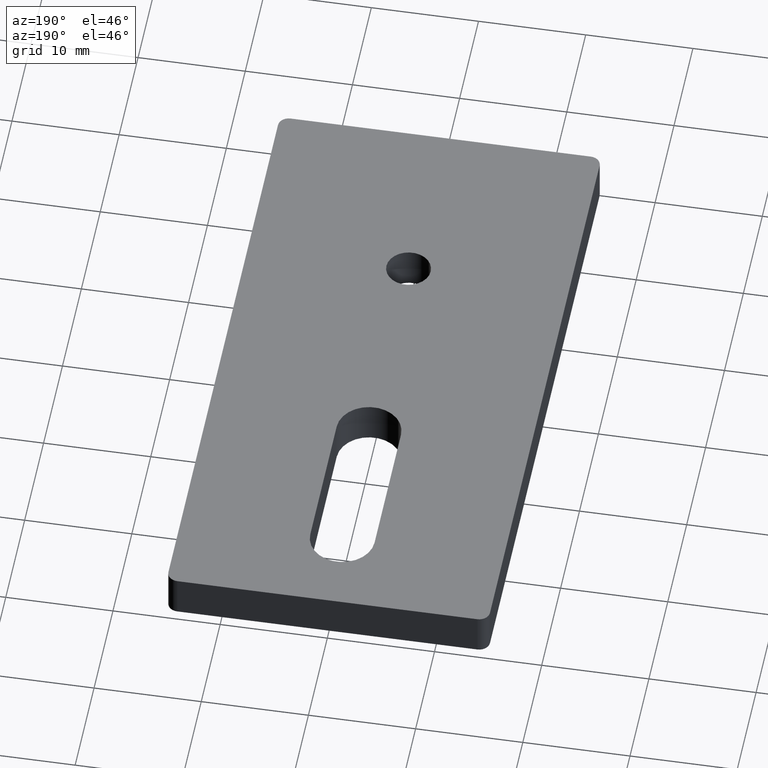
[diagram: clean part render]
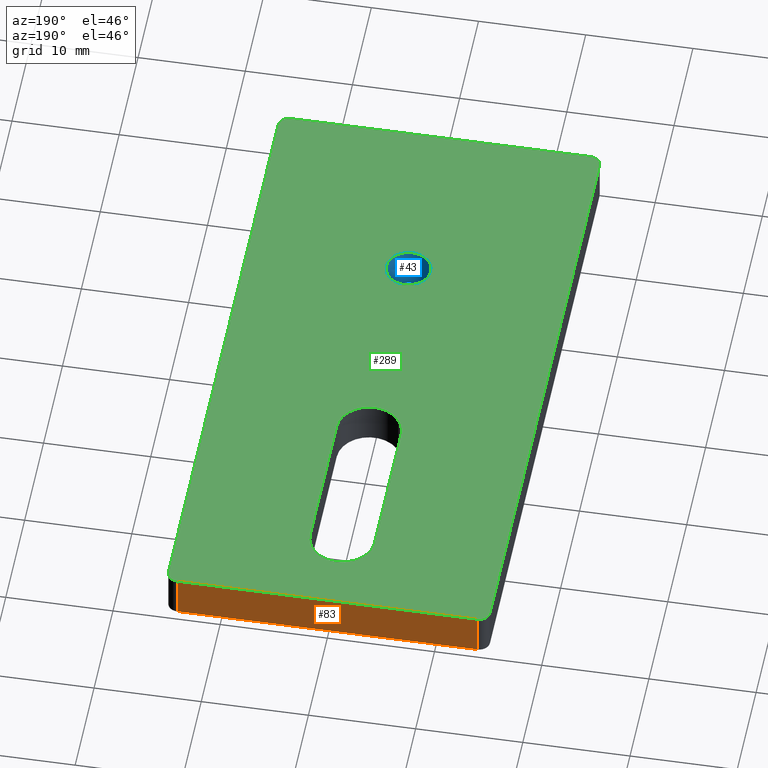
[diagram: same view with three faces highlighted in distinct colors, each labeled with its STEP entity id]
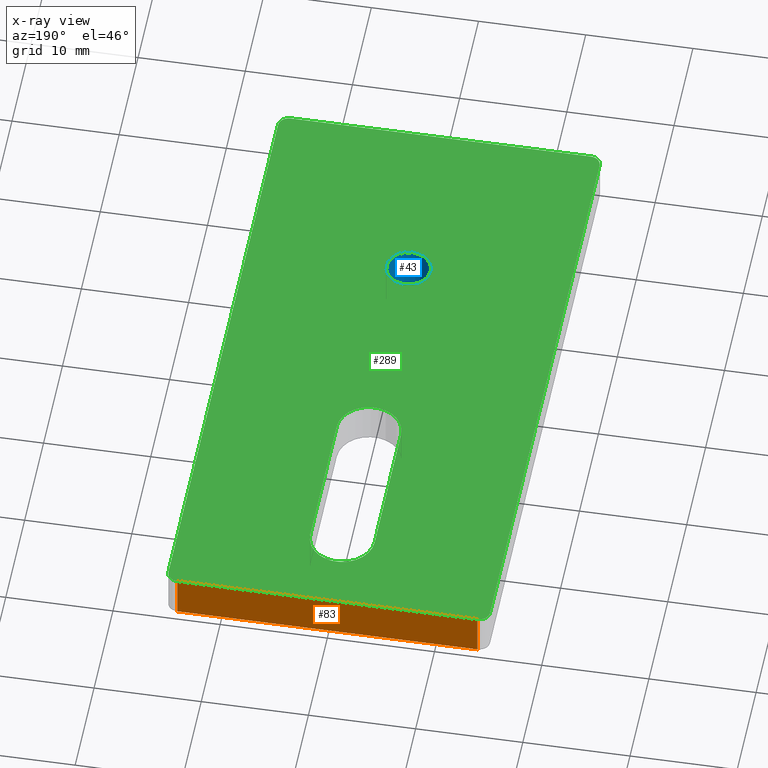
[diagram: x-ray of the same camera — body ghosted, the three highlighted faces saturated]
A machine part, auxiliary view with three faces highlighted in distinct colors.
The next image is the same camera in x-ray (body ghosted, the three faces saturated) — at least one of them is partly hidden behind the body in this view.
Their STEP definitions:

[orange] entity #83 — the highlighted planar face has unit normal (0, -1, 0).
#44=CARTESIAN_POINT('',(-15.400000000000013,59.999999999999979,4.200000000000000));
#45=DIRECTION('',(0.0,-1.0,0.0));
#46=DIRECTION('',(0.0,0.0,-1.0));
#47=AXIS2_PLACEMENT_3D('',#44,#45,#46);
#48=PLANE('',#47);
#49=CARTESIAN_POINT('',(14.000000000000007,59.999999999999979,4.0));
#50=VERTEX_POINT('',#49);
#51=CARTESIAN_POINT('',(-14.000000000000007,59.999999999999979,4.0));
#52=VERTEX_POINT('',#51);
#53=CARTESIAN_POINT('',(14.000000000000007,59.999999999999979,4.0));
#54=DIRECTION('',(-1.0,0.0,0.0));
#55=VECTOR('',#54,28.000000000000014);
#56=LINE('',#53,#55);
#57=EDGE_CURVE('',#50,#52,#56,.T.);
#58=ORIENTED_EDGE('',*,*,#57,.F.);
#59=CARTESIAN_POINT('',(14.000000000000007,59.999999999999979,0.0));
#60=VERTEX_POINT('',#59);
#61=CARTESIAN_POINT('',(14.000000000000007,59.999999999999979,4.0));
#62=DIRECTION('',(0.0,0.0,-1.0));
#63=VECTOR('',#62,4.0);
#64=LINE('',#61,#63);
#65=EDGE_CURVE('',#50,#60,#64,.T.);
#66=ORIENTED_EDGE('',*,*,#65,.T.);
#67=CARTESIAN_POINT('',(-14.000000000000007,59.999999999999979,0.0));
#68=VERTEX_POINT('',#67);
#69=CARTESIAN_POINT('',(14.000000000000007,59.999999999999979,0.0));
#70=DIRECTION('',(-1.0,0.0,0.0));
#71=VECTOR('',#70,28.000000000000014);
#72=LINE('',#69,#71);
#73=EDGE_CURVE('',#60,#68,#72,.T.);
#74=ORIENTED_EDGE('',*,*,#73,.T.);
#75=CARTESIAN_POINT('',(-14.000000000000007,59.999999999999979,0.0));
#76=DIRECTION('',(0.0,0.0,1.0));
#77=VECTOR('',#76,4.0);
#78=LINE('',#75,#77);
#79=EDGE_CURVE('',#68,#52,#78,.T.);
#80=ORIENTED_EDGE('',*,*,#79,.T.);
#81=EDGE_LOOP('',(#58,#66,#74,#80));
#82=FACE_OUTER_BOUND('',#81,.T.);
#83=ADVANCED_FACE('',(#82),#48,.F.);

[blue] entity #43 — the highlighted cylindrical surface (edge-blend (fillet) strip) has radius 2.067 mm, axis along (0, 0, 1).
#2=CARTESIAN_POINT('',(0.0,16.999999999999986,-0.000000010000001));
#3=DIRECTION('',(0.0,0.0,1.0));
#4=DIRECTION('',(0.0,1.0,0.0));
#5=AXIS2_PLACEMENT_3D('',#2,#3,#4);
#6=CYLINDRICAL_SURFACE('',#5,2.066999999999999);
#7=CARTESIAN_POINT('',(-2.067000000000014,16.999999999999993,0.0));
#8=VERTEX_POINT('',#7);
#9=CARTESIAN_POINT('',(2.066999999999993,16.999999999999993,0.0));
#10=VERTEX_POINT('',#9);
#11=CARTESIAN_POINT('',(0.0,16.999999999999993,0.0));
#12=DIRECTION('',(0.0,0.0,1.0));
#13=DIRECTION('',(1.0,0.0,0.0));
#14=AXIS2_PLACEMENT_3D('',#11,#12,#13);
#15=CIRCLE('',#14,2.066999999999999);
#16=EDGE_CURVE('',#8,#10,#15,.T.);
#17=ORIENTED_EDGE('',*,*,#16,.F.);
#18=CARTESIAN_POINT('',(-2.067000000000014,16.999999999999993,4.0));
#19=VERTEX_POINT('',#18);
#20=CARTESIAN_POINT('',(-2.067000000000014,16.999999999999993,0.0));
#21=DIRECTION('',(0.0,0.0,1.0));
#22=VECTOR('',#21,4.0);
#23=LINE('',#20,#22);
#24=EDGE_CURVE('',#8,#19,#23,.T.);
#25=ORIENTED_EDGE('',*,*,#24,.T.);
#26=CARTESIAN_POINT('',(2.066999999999993,16.999999999999993,4.0));
#27=VERTEX_POINT('',#26);
#28=CARTESIAN_POINT('',(0.0,16.999999999999993,4.0));
#29=DIRECTION('',(0.0,0.0,1.0));
#30=DIRECTION('',(0.0,1.0,0.0));
#31=AXIS2_PLACEMENT_3D('',#28,#29,#30);
#32=CIRCLE('',#31,2.066999999999999);
#33=EDGE_CURVE('',#19,#27,#32,.T.);
#34=ORIENTED_EDGE('',*,*,#33,.T.);
#35=CARTESIAN_POINT('',(2.066999999999993,16.999999999999993,0.0));
#36=DIRECTION('',(0.0,0.0,1.0));
#37=VECTOR('',#36,4.0);
#38=LINE('',#35,#37);
#39=EDGE_CURVE('',#10,#27,#38,.T.);
#40=ORIENTED_EDGE('',*,*,#39,.F.);
#41=EDGE_LOOP('',(#17,#25,#34,#40));
#42=FACE_OUTER_BOUND('',#41,.T.);
#43=ADVANCED_FACE('',(#42),#6,.F.);

[green] entity #289 — the highlighted planar face has unit normal (0, 0, 1).
#18=CARTESIAN_POINT('',(-2.067000000000014,16.999999999999993,4.0));
#19=VERTEX_POINT('',#18);
#26=CARTESIAN_POINT('',(2.066999999999993,16.999999999999993,4.0));
#27=VERTEX_POINT('',#26);
#28=CARTESIAN_POINT('',(0.0,16.999999999999993,4.0));
#29=DIRECTION('',(0.0,0.0,1.0));
#30=DIRECTION('',(0.0,1.0,0.0));
#31=AXIS2_PLACEMENT_3D('',#28,#29,#30);
#32=CIRCLE('',#31,2.066999999999999);
#33=EDGE_CURVE('',#19,#27,#32,.T.);
#49=CARTESIAN_POINT('',(14.000000000000007,59.999999999999979,4.0));
#50=VERTEX_POINT('',#49);
#51=CARTESIAN_POINT('',(-14.000000000000007,59.999999999999979,4.0));
#52=VERTEX_POINT('',#51);
#53=CARTESIAN_POINT('',(14.000000000000007,59.999999999999979,4.0));
#54=DIRECTION('',(-1.0,0.0,0.0));
#55=VECTOR('',#54,28.000000000000014);
#56=LINE('',#53,#55);
#57=EDGE_CURVE('',#50,#52,#56,.T.);
#99=CARTESIAN_POINT('',(-15.000000000000007,1.0,4.0));
#100=VERTEX_POINT('',#99);
#107=CARTESIAN_POINT('',(-15.000000000000007,58.999999999999979,4.0));
#108=VERTEX_POINT('',#107);
#109=CARTESIAN_POINT('',(-15.000000000000007,58.999999999999979,4.0));
#110=DIRECTION('',(0.0,-1.0,0.0));
#111=VECTOR('',#110,57.999999999999979);
#112=LINE('',#109,#111);
#113=EDGE_CURVE('',#108,#100,#112,.T.);
#129=CARTESIAN_POINT('',(-14.000000000000007,0.0,4.0));
#130=VERTEX_POINT('',#129);
#131=CARTESIAN_POINT('',(14.000000000000007,0.0,4.0));
#132=VERTEX_POINT('',#131);
#133=CARTESIAN_POINT('',(-14.000000000000007,0.0,4.0));
#134=DIRECTION('',(1.0,0.0,0.0));
#135=VECTOR('',#134,28.000000000000014);
#136=LINE('',#133,#135);
#137=EDGE_CURVE('',#130,#132,#136,.T.);
#169=CARTESIAN_POINT('',(15.000000000000007,1.0,4.0));
#170=VERTEX_POINT('',#169);
#171=CARTESIAN_POINT('',(15.000000000000007,58.999999999999979,4.0));
#172=VERTEX_POINT('',#171);
#173=CARTESIAN_POINT('',(15.000000000000007,1.0,4.0));
#174=DIRECTION('',(0.0,1.0,0.0));
#175=VECTOR('',#174,57.999999999999979);
#176=LINE('',#173,#175);
#177=EDGE_CURVE('',#170,#172,#176,.T.);
#204=CARTESIAN_POINT('',(-16.500000000000007,-3.0,4.0));
#205=DIRECTION('',(0.0,0.0,1.0));
#206=DIRECTION('',(1.0,0.0,0.0));
#207=AXIS2_PLACEMENT_3D('',#204,#205,#206);
#208=PLANE('',#207);
#209=ORIENTED_EDGE('',*,*,#113,.T.);
#210=CARTESIAN_POINT('',(-14.000000000000007,1.0,4.0));
#211=DIRECTION('',(0.0,0.0,1.0));
#212=DIRECTION('',(1.0,0.0,0.0));
#213=AXIS2_PLACEMENT_3D('',#210,#211,#212);
#214=CIRCLE('',#213,1.000000000000001);
#215=EDGE_CURVE('',#100,#130,#214,.T.);
#216=ORIENTED_EDGE('',*,*,#215,.T.);
#217=ORIENTED_EDGE('',*,*,#137,.T.);
#218=CARTESIAN_POINT('',(14.000000000000007,1.0,4.0));
#219=DIRECTION('',(0.0,0.0,1.0));
#220=DIRECTION('',(1.0,0.0,0.0));
#221=AXIS2_PLACEMENT_3D('',#218,#219,#220);
#222=CIRCLE('',#221,1.000000000000001);
#223=EDGE_CURVE('',#132,#170,#222,.T.);
#224=ORIENTED_EDGE('',*,*,#223,.T.);
#225=ORIENTED_EDGE('',*,*,#177,.T.);
#226=CARTESIAN_POINT('',(14.000000000000007,58.999999999999979,4.0));
#227=DIRECTION('',(0.0,0.0,1.0));
#228=DIRECTION('',(1.0,0.0,0.0));
#229=AXIS2_PLACEMENT_3D('',#226,#227,#228);
#230=CIRCLE('',#229,1.000000000000001);
#231=EDGE_CURVE('',#172,#50,#230,.T.);
#232=ORIENTED_EDGE('',*,*,#231,.T.);
#233=ORIENTED_EDGE('',*,*,#57,.T.);
#234=CARTESIAN_POINT('',(-14.000000000000007,58.999999999999979,4.0));
#235=DIRECTION('',(0.0,0.0,1.0));
#236=DIRECTION('',(1.0,0.0,0.0));
#237=AXIS2_PLACEMENT_3D('',#234,#235,#236);
#238=CIRCLE('',#237,1.000000000000001);
#239=EDGE_CURVE('',#52,#108,#238,.T.);
#240=ORIENTED_EDGE('',*,*,#239,.T.);
#241=EDGE_LOOP('',(#209,#216,#217,#224,#225,#232,#233,#240));
#242=FACE_OUTER_BOUND('',#241,.T.);
#243=CARTESIAN_POINT('',(0.0,16.999999999999993,4.0));
#244=DIRECTION('',(0.0,0.0,1.0));
#245=DIRECTION('',(0.0,1.0,0.0));
#246=AXIS2_PLACEMENT_3D('',#243,#244,#245);
#247=CIRCLE('',#246,2.066999999999999);
#248=EDGE_CURVE('',#27,#19,#247,.T.);
#249=ORIENTED_EDGE('',*,*,#248,.F.);
#250=ORIENTED_EDGE('',*,*,#33,.F.);
#251=EDGE_LOOP('',(#249,#250));
#252=FACE_BOUND('',#251,.T.);
#253=CARTESIAN_POINT('',(3.0,51.999999999999993,4.0));
#254=VERTEX_POINT('',#253);
#255=CARTESIAN_POINT('',(-3.000000000000007,51.999999999999993,4.0));
#256=VERTEX_POINT('',#255);
#257=CARTESIAN_POINT('',(0.0,51.999999999999993,4.0));
#258=DIRECTION('',(0.0,0.0,1.0));
#259=DIRECTION('',(0.0,-1.0,0.0));
#260=AXIS2_PLACEMENT_3D('',#257,#258,#259);
#261=CIRCLE('',#260,3.000000000000002);
#262=EDGE_CURVE('',#254,#256,#261,.T.);
#263=ORIENTED_EDGE('',*,*,#262,.F.);
#264=CARTESIAN_POINT('',(3.0,37.999999999999993,4.0));
#265=VERTEX_POINT('',#264);
#266=CARTESIAN_POINT('',(3.0,37.999999999999993,4.0));
#267=DIRECTION('',(0.0,1.0,0.0));
#268=VECTOR('',#267,14.0);
#269=LINE('',#266,#268);
#270=EDGE_CURVE('',#265,#254,#269,.T.);
#271=ORIENTED_EDGE('',*,*,#270,.F.);
#272=CARTESIAN_POINT('',(-3.000000000000007,37.999999999999993,4.0));
#273=VERTEX_POINT('',#272);
#274=CARTESIAN_POINT('',(0.0,38.000000000000007,4.0));
#275=DIRECTION('',(0.0,0.0,1.0));
#276=DIRECTION('',(0.0,1.0,0.0));
#277=AXIS2_PLACEMENT_3D('',#274,#275,#276);
#278=CIRCLE('',#277,2.999999999999996);
#279=EDGE_CURVE('',#273,#265,#278,.T.);
#280=ORIENTED_EDGE('',*,*,#279,.F.);
#281=CARTESIAN_POINT('',(-3.000000000000007,51.999999999999993,4.0));
#282=DIRECTION('',(0.0,-1.0,0.0));
#283=VECTOR('',#282,14.0);
#284=LINE('',#281,#283);
#285=EDGE_CURVE('',#256,#273,#284,.T.);
#286=ORIENTED_EDGE('',*,*,#285,.F.);
#287=EDGE_LOOP('',(#263,#271,#280,#286));
#288=FACE_BOUND('',#287,.T.);
#289=ADVANCED_FACE('',(#242,#252,#288),#208,.T.);